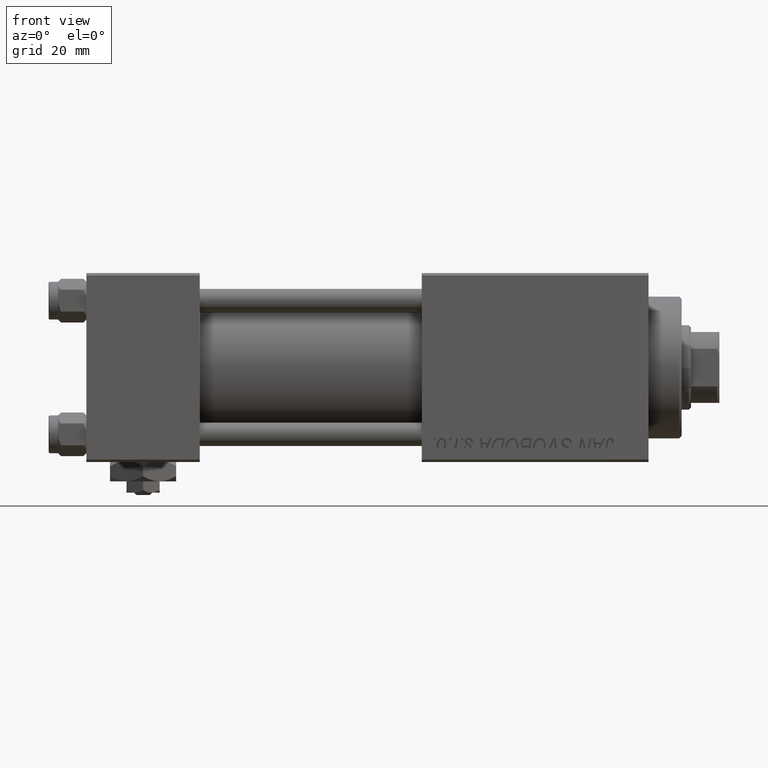
[diagram: clean part render]
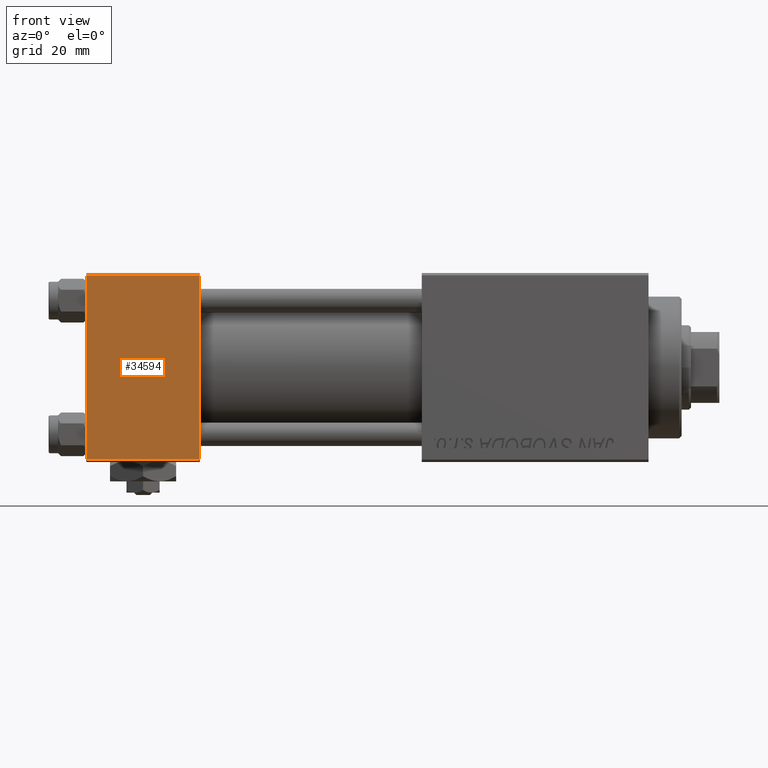
[diagram: same view with one face highlighted and labeled with its STEP entity id]
A machine part, front view. The second image highlights one B-rep face of the part: STEP entity #34594.
In plain terms, the highlighted planar face has unit normal (0, 1, 0).
Its self-contained STEP definition (entity closure, byte-faithful):
#1097 = LINE ( 'NONE', #17115, #10118 ) ;
#3448 = CARTESIAN_POINT ( 'NONE',  ( 24.00000000000000000, -20.00000000000000355, 19.99999999999998934 ) ) ;
#4251 = EDGE_CURVE ( 'NONE', #48968, #7181, #13931, .T. ) ;
#4723 = DIRECTION ( 'NONE',  ( -1.000000000000000000, 0.000000000000000000, 0.000000000000000000 ) ) ;
#6102 = EDGE_CURVE ( 'NONE', #31239, #7181, #1097, .T. ) ;
#7181 = VERTEX_POINT ( 'NONE', #42179 ) ;
#10118 = VECTOR ( 'NONE', #45738, 1000.000000000000000 ) ;
#10768 = DIRECTION ( 'NONE',  ( 1.000000000000000000, 0.000000000000000000, 0.000000000000000000 ) ) ;
#11562 = EDGE_CURVE ( 'NONE', #31239, #32067, #25197, .T. ) ;
#12344 = FACE_OUTER_BOUND ( 'NONE', #48854, .T. ) ;
#13931 = LINE ( 'NONE', #26008, #19328 ) ;
#14790 = CARTESIAN_POINT ( 'NONE',  ( 0.000000000000000000, -20.00000000000000355, 19.49999999999998224 ) ) ;
#15231 = EDGE_CURVE ( 'NONE', #32067, #48968, #42272, .T. ) ;
#17115 = CARTESIAN_POINT ( 'NONE',  ( 24.00000000000000000, -20.00000000000000355, 19.99999999999998934 ) ) ;
#18103 = DIRECTION ( 'NONE',  ( 0.000000000000000000, 8.673617379884036705E-17, -1.000000000000000000 ) ) ;
#19328 = VECTOR ( 'NONE', #10768, 1000.000000000000000 ) ;
#21101 = AXIS2_PLACEMENT_3D ( 'NONE', #3448, #31802, #48328 ) ;
#21707 = ORIENTED_EDGE ( 'NONE', *, *, #15231, .T. ) ;
#25197 = LINE ( 'NONE', #25721, #35328 ) ;
#25721 = CARTESIAN_POINT ( 'NONE',  ( 24.00000000000000000, -20.00000000000000355, 19.49999999999998224 ) ) ;
#26008 = CARTESIAN_POINT ( 'NONE',  ( 24.00000000000000000, -20.00000000000000000, -19.49999999999999645 ) ) ;
#27050 = CARTESIAN_POINT ( 'NONE',  ( 0.000000000000000000, -20.00000000000000355, 19.99999999999998934 ) ) ;
#31239 = VERTEX_POINT ( 'NONE', #49443 ) ;
#31802 = DIRECTION ( 'NONE',  ( -0.000000000000000000, 1.000000000000000000, 8.673617379884036705E-17 ) ) ;
#32067 = VERTEX_POINT ( 'NONE', #14790 ) ;
#34594 = ADVANCED_FACE ( 'NONE', ( #12344 ), #35204, .F. ) ;
#35153 = ORIENTED_EDGE ( 'NONE', *, *, #11562, .T. ) ;
#35204 = PLANE ( 'NONE',  #21101 ) ;
#35328 = VECTOR ( 'NONE', #4723, 1000.000000000000000 ) ;
#37137 = ORIENTED_EDGE ( 'NONE', *, *, #4251, .T. ) ;
#39275 = ORIENTED_EDGE ( 'NONE', *, *, #6102, .F. ) ;
#41359 = VECTOR ( 'NONE', #18103, 1000.000000000000000 ) ;
#41565 = CARTESIAN_POINT ( 'NONE',  ( 0.000000000000000000, -20.00000000000000000, -19.49999999999999645 ) ) ;
#42179 = CARTESIAN_POINT ( 'NONE',  ( 24.00000000000000000, -20.00000000000000000, -19.49999999999999645 ) ) ;
#42272 = LINE ( 'NONE', #27050, #41359 ) ;
#45738 = DIRECTION ( 'NONE',  ( 0.000000000000000000, 8.673617379884036705E-17, -1.000000000000000000 ) ) ;
#48328 = DIRECTION ( 'NONE',  ( 0.000000000000000000, -8.673617379884036705E-17, 1.000000000000000000 ) ) ;
#48854 = EDGE_LOOP ( 'NONE', ( #21707, #37137, #39275, #35153 ) ) ;
#48968 = VERTEX_POINT ( 'NONE', #41565 ) ;
#49443 = CARTESIAN_POINT ( 'NONE',  ( 24.00000000000000000, -20.00000000000000355, 19.49999999999998224 ) ) ;